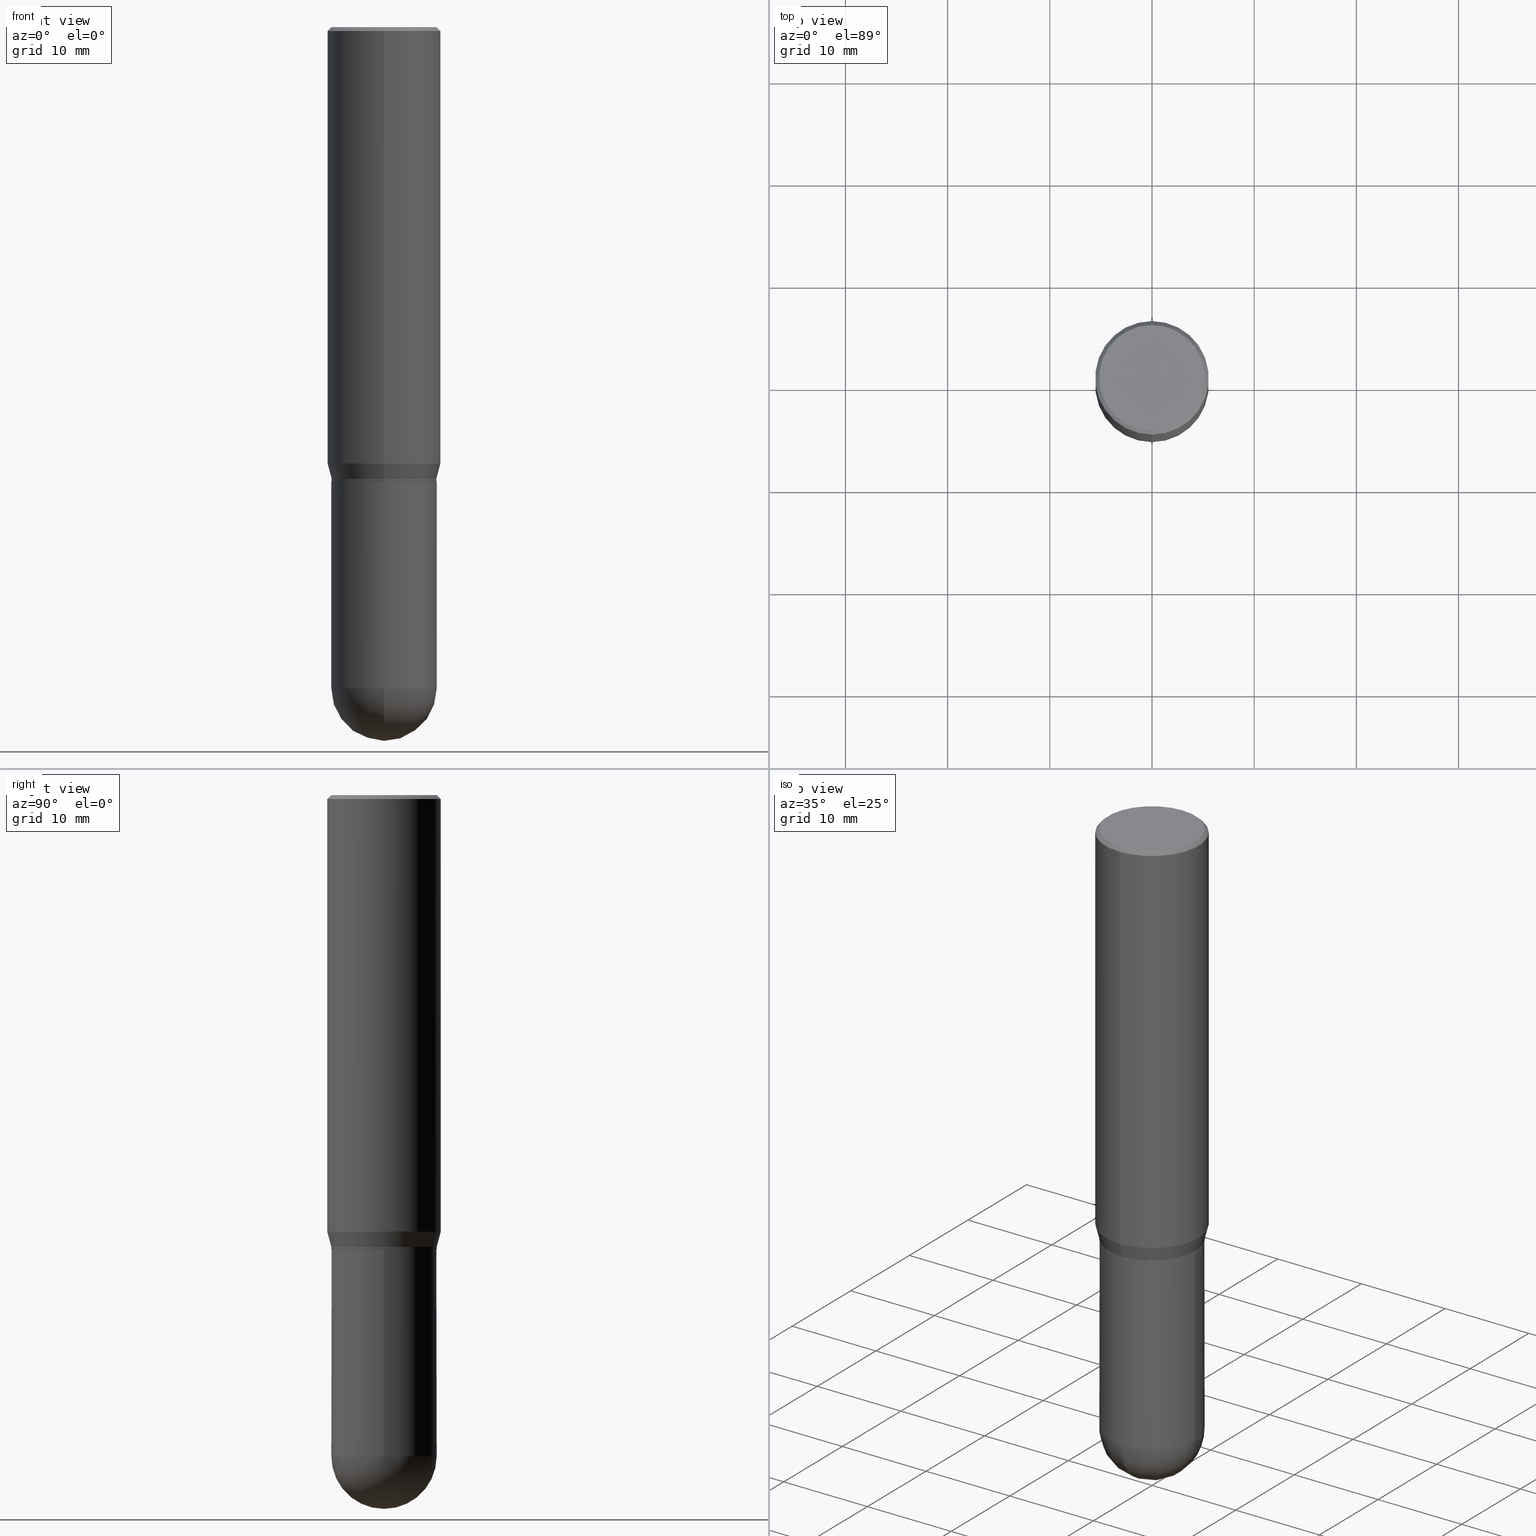
[diagram: canonical four-view strip — front | top / right | iso, engineering-drawing reading convention]
A machine part, canonical four-view strip (front | top / right | iso — engineering-drawing reading convention). The complete STEP part file that produces these views, byte-faithful:
ISO-10303-21;
HEADER;
FILE_DESCRIPTION (( 'STEP AP203' ),
    '1' );
FILE_NAME ('30352.STEP',
    '2024-03-08T15:22:58',
    ( '' ),
    ( '' ),
    'SwSTEP 2.0',
    'SolidWorks 2023',
    '' );
FILE_SCHEMA (( 'CONFIG_CONTROL_DESIGN' ));
ENDSEC;

DATA;
#1 = EDGE_LOOP ( 'NONE', ( #393, #192 ) ) ;
#2 = SHAPE_DEFINITION_REPRESENTATION ( #88, #202 ) ;
#3 = DIRECTION ( 'NONE',  ( -6.982962677686266711E-15, -1.000000000000000000, 4.035225987687243463E-15 ) ) ;
#4 = AXIS2_PLACEMENT_3D ( 'NONE', #228, #268, #75 ) ;
#5 = ORIENTED_EDGE ( 'NONE', *, *, #122, .F. ) ;
#6 = EDGE_CURVE ( 'NONE', #275, #503, #316, .T. ) ;
#7 = DIRECTION ( 'NONE',  ( -2.445218819430257669E-29, 3.491839334104495039E-15, 1.000000000000000000 ) ) ;
#8 = CARTESIAN_POINT ( 'NONE',  ( 0.2031000000000000028, -1.418239719838080775E-15, 9.903515031641546145E-30 ) ) ;
#9 = ORIENTED_EDGE ( 'NONE', *, *, #22, .F. ) ;
#10 = CARTESIAN_POINT ( 'NONE',  ( 6.210996075139691695E-29, -8.917326398390289827E-15, -2.546899999999999942 ) ) ;
#11 = ADVANCED_FACE ( 'NONE', ( #109 ), #198, .T. ) ;
#12 = CIRCLE ( 'NONE', #230, 0.2031000000000000583 ) ;
#13 = CIRCLE ( 'NONE', #452, 0.2187500000000000000 ) ;
#14 = COORDINATED_UNIVERSAL_TIME_OFFSET ( 5, 0, .BEHIND. ) ;
#15 = ORIENTED_EDGE ( 'NONE', *, *, #282, .T. ) ;
#16 = DIRECTION ( 'NONE',  ( -6.982962677686265922E-15, -1.000000000000000000, 4.045184590815789415E-15 ) ) ;
#17 = CALENDAR_DATE ( 2024, 8, 3 ) ;
#18 = SPHERICAL_SURFACE ( 'NONE', #27, 0.2030999999999999472 ) ;
#19 = CARTESIAN_POINT ( 'NONE',  ( -1.418239719838037782E-15, -0.2031000000000060257, -1.739999999999999103 ) ) ;
#20 = CIRCLE ( 'NONE', #124, 0.2031000000000000028 ) ;
#21 = APPROVAL_PERSON_ORGANIZATION ( #299, #173, #96 ) ;
#22 = EDGE_CURVE ( 'NONE', #166, #503, #421, .T. ) ;
#23 = ORIENTED_EDGE ( 'NONE', *, *, #407, .F. ) ;
#24 = DIRECTION ( 'NONE',  ( -6.982962677686265133E-15, -1.000000000000000000, 3.491839334104495039E-15 ) ) ;
#25 = DIRECTION ( 'NONE',  ( -4.937700262164715281E-15, -0.7071067811865691111, 0.7071067811865257013 ) ) ;
#26 = ADVANCED_FACE ( 'NONE', ( #69 ), #431, .T. ) ;
#27 = AXIS2_PLACEMENT_3D ( 'NONE', #490, #59, #142 ) ;
#28 = CARTESIAN_POINT ( 'NONE',  ( 3.667828229145395104E-31, -5.237759001156755081E-17, -0.01500000000000003587 ) ) ;
#29 = CC_DESIGN_APPROVAL ( #286, ( #478 ) ) ;
#30 = DIRECTION ( 'NONE',  ( 1.000000000000000000, -6.982962677686262766E-15, 0.000000000000000000 ) ) ;
#31 = ORIENTED_EDGE ( 'NONE', *, *, #471, .F. ) ;
#32 = PLANE ( 'NONE',  #262 ) ;
#33 = VERTEX_POINT ( 'NONE', #425 ) ;
#34 = CARTESIAN_POINT ( 'NONE',  ( 0.000000000000000000, 0.000000000000000000, 0.000000000000000000 ) ) ;
#35 = DIRECTION ( 'NONE',  ( -2.445468806185136597E-29, 3.491481338843145583E-15, 1.000000000000000000 ) ) ;
#36 = CARTESIAN_POINT ( 'NONE',  ( 6.228364502472924746E-29, -8.892453821899607499E-15, -2.546899999999999942 ) ) ;
#37 = EDGE_CURVE ( 'NONE', #396, #310, #232, .T. ) ;
#38 = ORIENTED_EDGE ( 'NONE', *, *, #401, .F. ) ;
#39 = CARTESIAN_POINT ( 'NONE',  ( 3.667828229145395104E-31, -5.237759001156755081E-17, -0.01500000000000003587 ) ) ;
#40 = VERTEX_POINT ( 'NONE', #315 ) ;
#41 = CARTESIAN_POINT ( 'NONE',  ( 1.498712265402032742E-15, 0.2030999999999938688, -1.740000000000000879 ) ) ;
#42 = CC_DESIGN_PERSON_AND_ORGANIZATION_ASSIGNMENT ( #219, #435, ( #478 ) ) ;
#43 = FACE_OUTER_BOUND ( 'NONE', #210, .T. ) ;
#44 = VECTOR ( 'NONE', #426, 39.37007874015748143 ) ;
#45 = EDGE_LOOP ( 'NONE', ( #359, #312, #117, #190 ) ) ;
#46 = DIRECTION ( 'NONE',  ( -2.445468806185136877E-29, 3.491481338843145188E-15, 1.000000000000000000 ) ) ;
#47 = VERTEX_POINT ( 'NONE', #476 ) ;
#48 = ORIENTED_EDGE ( 'NONE', *, *, #496, .T. ) ;
#49 = EDGE_CURVE ( 'NONE', #310, #40, #349, .T. ) ;
#50 = DIRECTION ( 'NONE',  ( -2.445468806185136597E-29, 3.491481338843145583E-15, 1.000000000000000000 ) ) ;
#51 = EDGE_LOOP ( 'NONE', ( #472, #385, #234, #434 ) ) ;
#52 = CARTESIAN_POINT ( 'NONE',  ( -0.2031000000000000028, 1.443112296328763497E-15, -9.990357168307714203E-30 ) ) ;
#53 = CIRCLE ( 'NONE', #231, 0.2030999999999999472 ) ;
#54 = CARTESIAN_POINT ( 'NONE',  ( -1.414748238499194972E-15, -0.2026000000000061363, -1.749999999999999112 ) ) ;
#55 = COORDINATED_UNIVERSAL_TIME_OFFSET ( 5, 0, .BEHIND. ) ;
#56 = CARTESIAN_POINT ( 'NONE',  ( -1.418239719838037782E-15, -0.2031000000000060257, -1.739999999999999103 ) ) ;
#57 = DATE_TIME_ROLE ( 'classification_date' ) ;
#58 = EDGE_CURVE ( 'NONE', #273, #340, #358, .T. ) ;
#59 = DIRECTION ( 'NONE',  ( -1.000000000000000000, 6.982962677686266711E-15, -4.883557194083112901E-29 ) ) ;
#60 = AXIS2_PLACEMENT_3D ( 'NONE', #391, #271, #238 ) ;
#61 = VECTOR ( 'NONE', #409, 39.37007874015748143 ) ;
#62 = CARTESIAN_POINT ( 'NONE',  ( 1.443112296328806293E-15, 0.2030999999999939243, -1.749500000000000721 ) ) ;
#63 = ORIENTED_EDGE ( 'NONE', *, *, #6, .F. ) ;
#64 = DIRECTION ( 'NONE',  ( -6.982962677686266711E-15, -1.000000000000000000, 4.035225987687243463E-15 ) ) ;
#65 = PERSON ( 'UNSPECIFIED', 'UNSPECIFIED', 'UNSPECIFIED', ('UNSPECIFIED'), ('UNSPECIFIED'), ('UNSPECIFIED') ) ;
#66 = EDGE_CURVE ( 'NONE', #264, #396, #477, .T. ) ;
#67 = AXIS2_PLACEMENT_3D ( 'NONE', #211, #135, #16 ) ;
#68 = CIRCLE ( 'NONE', #254, 0.2026000000000000023 ) ;
#69 = FACE_OUTER_BOUND ( 'NONE', #247, .T. ) ;
#70 = ORIENTED_EDGE ( 'NONE', *, *, #274, .T. ) ;
#71 = ORIENTED_EDGE ( 'NONE', *, *, #371, .F. ) ;
#72 = DIRECTION ( 'NONE',  ( -2.445218819430257669E-29, 3.491839334104495039E-15, 1.000000000000000000 ) ) ;
#73 = AXIS2_PLACEMENT_3D ( 'NONE', #369, #80, #3 ) ;
#74 = CC_DESIGN_APPROVAL ( #79, ( #354 ) ) ;
#75 = DIRECTION ( 'NONE',  ( -6.982962677686265133E-15, -1.000000000000000000, 3.491839334104495039E-15 ) ) ;
#76 = MANIFOLD_SOLID_BREP ( 'Body-Move/Copy2[2]', #288 ) ;
#77 = EDGE_LOOP ( 'NONE', ( #70, #170 ) ) ;
#78 = CALENDAR_DATE ( 2024, 8, 3 ) ;
#79 = APPROVAL ( #200, 'UNSPECIFIED' ) ;
#80 = DIRECTION ( 'NONE',  ( -2.445218819430257669E-29, 3.491839334104495039E-15, 1.000000000000000000 ) ) ;
#81 = CARTESIAN_POINT ( 'NONE',  ( 1.527523085743871040E-15, 0.2187499999999999167, -0.01500000000000080089 ) ) ;
#82 = VERTEX_POINT ( 'NONE', #307 ) ;
#83 = FACE_OUTER_BOUND ( 'NONE', #475, .T. ) ;
#84 = CIRCLE ( 'NONE', #373, 0.2030999999999999472 ) ;
#85 = MANIFOLD_SOLID_BREP ( 'Body-Move/Copy2[1]', #441 ) ;
#86 = ORIENTED_EDGE ( 'NONE', *, *, #458, .T. ) ;
#87 = CARTESIAN_POINT ( 'NONE',  ( 6.210996075139691695E-29, -8.917326398390289827E-15, -2.546899999999999942 ) ) ;
#88 = PRODUCT_DEFINITION_SHAPE ( 'NONE', 'NONE',  #354 ) ;
#89 = EDGE_CURVE ( 'NONE', #47, #118, #176, .T. ) ;
#90 = CARTESIAN_POINT ( 'NONE',  ( 1.475150865661223764E-15, 0.2037499999999999867, -7.474527806162975225E-16 ) ) ;
#91 = SECURITY_CLASSIFICATION_LEVEL ( 'unclassified' ) ;
#92 = CARTESIAN_POINT ( 'NONE',  ( 1.418239719838142898E-15, 0.2030999999999910932, -2.546900000000000830 ) ) ;
#93 = DIMENSIONAL_EXPONENTS ( 1.000000000000000000, 0.000000000000000000, 0.000000000000000000, 0.000000000000000000, 0.000000000000000000, 0.000000000000000000, 0.000000000000000000 ) ;
#94 = CIRCLE ( 'NONE', #261, 0.2037499999999999867 ) ;
#95 = VECTOR ( 'NONE', #469, 39.37007874015748143 ) ;
#96 = APPROVAL_ROLE ( '' ) ;
#97 = CYLINDRICAL_SURFACE ( 'NONE', #492, 0.2031000000000000028 ) ;
#98 = EDGE_CURVE ( 'NONE', #273, #118, #398, .T. ) ;
#99 = PERSON_AND_ORGANIZATION ( #65, #499 ) ;
#100 = DIRECTION ( 'NONE',  ( -2.445218819430257669E-29, 3.491839334104495039E-15, 1.000000000000000000 ) ) ;
#101 = CARTESIAN_POINT ( 'NONE',  ( 0.000000000000000000, 0.000000000000000000, 0.000000000000000000 ) ) ;
#102 = VECTOR ( 'NONE', #186, 39.37007874015748143 ) ;
#103 = ADVANCED_FACE ( 'NONE', ( #209 ), #293, .T. ) ;
#104 = FACE_OUTER_BOUND ( 'NONE', #501, .T. ) ;
#105 = EDGE_LOOP ( 'NONE', ( #38, #446, #196, #427 ) ) ;
#106 = PRODUCT_RELATED_PRODUCT_CATEGORY ( 'detail', '', ( #356 ) ) ;
#107 =( CONVERSION_BASED_UNIT ( 'INCH', #473 ) LENGTH_UNIT ( ) NAMED_UNIT ( #93 ) );
#108 = DESIGN_CONTEXT ( 'detailed design', #346, 'design' ) ;
#109 = FACE_OUTER_BOUND ( 'NONE', #45, .T. ) ;
#110 = AXIS2_PLACEMENT_3D ( 'NONE', #361, #7, #246 ) ;
#111 = ORIENTED_EDGE ( 'NONE', *, *, #132, .F. ) ;
#112 = AXIS2_PLACEMENT_3D ( 'NONE', #505, #281, #436 ) ;
#113 = CARTESIAN_POINT ( 'NONE',  ( 3.667828229145395104E-31, -5.237759001156755081E-17, -0.01500000000000003587 ) ) ;
#114 = ORIENTED_EDGE ( 'NONE', *, *, #449, .T. ) ;
#115 = EDGE_CURVE ( 'NONE', #387, #166, #244, .T. ) ;
#116 = DIRECTION ( 'NONE',  ( -2.445218819430257669E-29, 3.491839334104495039E-15, 1.000000000000000000 ) ) ;
#117 = ORIENTED_EDGE ( 'NONE', *, *, #423, .F. ) ;
#118 = VERTEX_POINT ( 'NONE', #248 ) ;
#119 = CARTESIAN_POINT ( 'NONE',  ( -1.418239719838080381E-15, -0.2030999999999999472, 7.091925687566227078E-16 ) ) ;
#120 = CARTESIAN_POINT ( 'NONE',  ( 1.554312234475218762E-15, 0.2187500000000000000, -7.638398543353582897E-16 ) ) ;
#121 = ORIENTED_EDGE ( 'NONE', *, *, #122, .T. ) ;
#122 = EDGE_CURVE ( 'NONE', #118, #47, #20, .T. ) ;
#123 = APPROVAL_ROLE ( '' ) ;
#124 = AXIS2_PLACEMENT_3D ( 'NONE', #161, #50, #251 ) ;
#125 = ORIENTED_EDGE ( 'NONE', *, *, #383, .F. ) ;
#126 = CARTESIAN_POINT ( 'NONE',  ( 4.279570410823988484E-29, -6.110092342975504671E-15, -1.750000000000000000 ) ) ;
#127 = ORIENTED_EDGE ( 'NONE', *, *, #49, .F. ) ;
#128 = LINE ( 'NONE', #8, #236 ) ;
#129 = DIRECTION ( 'NONE',  ( 6.982962677686266711E-15, 1.000000000000000000, -2.690150658458162309E-15 ) ) ;
#130 = CIRCLE ( 'NONE', #73, 0.2030999999999999472 ) ;
#131 = AXIS2_PLACEMENT_3D ( 'NONE', #183, #100, #498 ) ;
#132 = EDGE_CURVE ( 'NONE', #199, #340, #84, .T. ) ;
#133 = PERSON_AND_ORGANIZATION ( #65, #499 ) ;
#134 = DIRECTION ( 'NONE',  ( 1.000000000000000000, -6.982962677686262766E-15, 0.000000000000000000 ) ) ;
#135 = DIRECTION ( 'NONE',  ( -2.445218819430257669E-29, 3.491839334104495039E-15, 1.000000000000000000 ) ) ;
#136 = DATE_TIME_ROLE ( 'creation_date' ) ;
#137 = CC_DESIGN_PERSON_AND_ORGANIZATION_ASSIGNMENT ( #133, #239, ( #177 ) ) ;
#138 = LINE ( 'NONE', #296, #61 ) ;
#139 = VECTOR ( 'NONE', #148, 39.37007874015748143 ) ;
#140 = APPROVAL_DATE_TIME ( #169, #79 ) ;
#141 = FACE_OUTER_BOUND ( 'NONE', #207, .T. ) ;
#142 = DIRECTION ( 'NONE',  ( 6.982962677686266711E-15, 1.000000000000000000, -2.690150658458162309E-15 ) ) ;
#143 = UNCERTAINTY_MEASURE_WITH_UNIT (LENGTH_MEASURE( 1.000000000000000082E-05 ), #107, 'distance_accuracy_value', 'NONE');
#144 = ADVANCED_FACE ( 'NONE', ( #83 ), #223, .T. ) ;
#145 = FACE_OUTER_BOUND ( 'NONE', #77, .T. ) ;
#146 = AXIS2_PLACEMENT_3D ( 'NONE', #167, #485, #392 ) ;
#147 = VECTOR ( 'NONE', #25, 39.37007874015748854 ) ;
#148 = DIRECTION ( 'NONE',  ( 1.839019923739593216E-15, 0.2588190451025239591, 0.9659258262890674240 ) ) ;
#149 = ORIENTED_EDGE ( 'NONE', *, *, #164, .T. ) ;
#150 = DIRECTION ( 'NONE',  ( 2.445218819430257669E-29, -3.491839334104495039E-15, -1.000000000000000000 ) ) ;
#151 = EDGE_CURVE ( 'NONE', #340, #82, #508, .T. ) ;
#152 = DIRECTION ( 'NONE',  ( -6.982962677686265922E-15, -1.000000000000000000, 4.045184590815789415E-15 ) ) ;
#153 = LOCAL_TIME ( 10, 22, 58.00000000000000000, #366 ) ;
#154 = DIRECTION ( 'NONE',  ( 1.000000000000000000, 0.000000000000000000, 0.000000000000000000 ) ) ;
#155 = EDGE_LOOP ( 'NONE', ( #287, #511, #179, #31 ) ) ;
#156 = LINE ( 'NONE', #463, #44 ) ;
#157 = ORIENTED_EDGE ( 'NONE', *, *, #187, .F. ) ;
#158 = EDGE_CURVE ( 'NONE', #182, #503, #283, .T. ) ;
#159 = VERTEX_POINT ( 'NONE', #41 ) ;
#160 = CIRCLE ( 'NONE', #131, 0.2187500000000000000 ) ;
#161 = CARTESIAN_POINT ( 'NONE',  ( 4.279570410823988484E-29, -6.110092342975504671E-15, -1.750000000000000000 ) ) ;
#162 = ORIENTED_EDGE ( 'NONE', *, *, #250, .T. ) ;
#163 = FACE_OUTER_BOUND ( 'NONE', #51, .T. ) ;
#164 = EDGE_CURVE ( 'NONE', #82, #47, #128, .T. ) ;
#165 = DIRECTION ( 'NONE',  ( -7.105427357601001070E-15, -1.000000000000000000, 0.000000000000000000 ) ) ;
#166 = VERTEX_POINT ( 'NONE', #447 ) ;
#167 = CARTESIAN_POINT ( 'NONE',  ( 0.000000000000000000, 0.000000000000000000, 0.000000000000000000 ) ) ;
#168 = AXIS2_PLACEMENT_3D ( 'NONE', #34, #507, #154 ) ;
#169 = DATE_AND_TIME ( #217, #153 ) ;
#170 = ORIENTED_EDGE ( 'NONE', *, *, #195, .T. ) ;
#171 = DIRECTION ( 'NONE',  ( 1.000000000000000000, -6.982962677686269866E-15, 0.000000000000000000 ) ) ;
#172 = APPROVAL_STATUS ( 'not_yet_approved' ) ;
#173 = APPROVAL ( #172, 'UNSPECIFIED' ) ;
#174 = DIRECTION ( 'NONE',  ( -2.445218819430257669E-29, 3.491839334104495039E-15, 1.000000000000000000 ) ) ;
#175 = CARTESIAN_POINT ( 'NONE',  ( -1.500733937012521740E-15, -0.2187500000000000555, -0.01499999999999927260 ) ) ;
#176 = CIRCLE ( 'NONE', #331, 0.2031000000000000028 ) ;
#177 = PRODUCT_DEFINITION_FORMATION_WITH_SPECIFIED_SOURCE ( 'ANY', '', #356, .NOT_KNOWN. ) ;
#178 = DIRECTION ( 'NONE',  ( 1.000000000000000000, -6.982962677686266711E-15, 4.876176775795935793E-29 ) ) ;
#179 = ORIENTED_EDGE ( 'NONE', *, *, #487, .T. ) ;
#180 = CARTESIAN_POINT ( 'NONE',  ( -1.414748238499194972E-15, -0.2026000000000061363, -1.749999999999999112 ) ) ;
#181 = EDGE_CURVE ( 'NONE', #40, #310, #130, .T. ) ;
#182 = VERTEX_POINT ( 'NONE', #90 ) ;
#183 = CARTESIAN_POINT ( 'NONE',  ( 4.111863840197258972E-29, -5.871853995066253491E-15, -1.681593404861546848 ) ) ;
#184 = APPROVAL_PERSON_ORGANIZATION ( #295, #79, #123 ) ;
#185 = DIRECTION ( 'NONE',  ( -6.982962677686265922E-15, -1.000000000000000000, 4.045184590815789415E-15 ) ) ;
#186 = DIRECTION ( 'NONE',  ( -2.445218819430257949E-29, 3.491839334104495039E-15, 1.000000000000000000 ) ) ;
#187 = EDGE_CURVE ( 'NONE', #279, #273, #12, .T. ) ;
#188 = ORIENTED_EDGE ( 'NONE', *, *, #58, .F. ) ;
#189 = DIRECTION ( 'NONE',  ( -1.000000000000000000, 6.982962677686265922E-15, -4.876176775795935793E-29 ) ) ;
#190 = ORIENTED_EDGE ( 'NONE', *, *, #487, .F. ) ;
#191 = CARTESIAN_POINT ( 'NONE',  ( 4.279132934002950220E-29, -6.110718834682865529E-15, -1.750000000000000000 ) ) ;
#192 = ORIENTED_EDGE ( 'NONE', *, *, #458, .F. ) ;
#193 = VECTOR ( 'NONE', #272, 39.37007874015748143 ) ;
#194 = CARTESIAN_POINT ( 'NONE',  ( 1.554312234475260375E-15, 0.2187499999999999167, -0.01500000000000080089 ) ) ;
#195 = EDGE_CURVE ( 'NONE', #33, #182, #412, .T. ) ;
#196 = ORIENTED_EDGE ( 'NONE', *, *, #158, .T. ) ;
#197 = DIRECTION ( 'NONE',  ( 2.445218819430257669E-29, -3.491839334104495039E-15, -1.000000000000000000 ) ) ;
#198 = CYLINDRICAL_SURFACE ( 'NONE', #278, 0.2030999999999999472 ) ;
#199 = VERTEX_POINT ( 'NONE', #319 ) ;
#200 = APPROVAL_STATUS ( 'not_yet_approved' ) ;
#201 = CARTESIAN_POINT ( 'NONE',  ( 4.111863840197258972E-29, -5.871853995066253491E-15, -1.681593404861546848 ) ) ;
#202 = ADVANCED_BREP_SHAPE_REPRESENTATION ( '30352', ( #85, #76, #168 ), #397 ) ;
#203 = ORIENTED_EDGE ( 'NONE', *, *, #164, .F. ) ;
#204 = AXIS2_PLACEMENT_3D ( 'NONE', #327, #240, #285 ) ;
#205 = CONICAL_SURFACE ( 'NONE', #269, 0.2187500000000000000, 0.7853981633974485010 ) ;
#206 = CYLINDRICAL_SURFACE ( 'NONE', #110, 0.2187500000000000000 ) ;
#207 = EDGE_LOOP ( 'NONE', ( #351, #438, #314, #71 ) ) ;
#208 = ADVANCED_FACE ( 'NONE', ( #323 ), #480, .T. ) ;
#209 = FACE_OUTER_BOUND ( 'NONE', #155, .T. ) ;
#210 = EDGE_LOOP ( 'NONE', ( #9, #343, #48, #23 ) ) ;
#211 = CARTESIAN_POINT ( 'NONE',  ( 4.279132934002950220E-29, -6.110718834682865529E-15, -1.750000000000000000 ) ) ;
#212 = ORIENTED_EDGE ( 'NONE', *, *, #250, .F. ) ;
#213 = DIRECTION ( 'NONE',  ( -6.982962677686265133E-15, -1.000000000000000000, 3.746534391310989557E-15 ) ) ;
#214 = VECTOR ( 'NONE', #46, 39.37007874015748143 ) ;
#215 = AXIS2_PLACEMENT_3D ( 'NONE', #222, #450, #258 ) ;
#216 = ADVANCED_FACE ( 'NONE', ( #43 ), #206, .T. ) ;
#217 = CALENDAR_DATE ( 2024, 8, 3 ) ;
#218 = FACE_OUTER_BOUND ( 'NONE', #443, .T. ) ;
#219 = PERSON_AND_ORGANIZATION ( #65, #499 ) ;
#220 = DIRECTION ( 'NONE',  ( 6.982962677686265922E-15, 1.000000000000000000, -3.491839334104495039E-15 ) ) ;
#221 = DATE_AND_TIME ( #249, #224 ) ;
#222 = CARTESIAN_POINT ( 'NONE',  ( 4.279132934002950220E-29, -6.110718834682865529E-15, -1.750000000000000000 ) ) ;
#223 = CONICAL_SURFACE ( 'NONE', #67, 0.2026000000000000023, 0.7853981633974824739 ) ;
#224 = LOCAL_TIME ( 10, 22, 58.00000000000000000, #55 ) ;
#225 = PLANE ( 'NONE',  #422 ) ;
#226 = CARTESIAN_POINT ( 'NONE',  ( -1.443112296328700980E-15, -0.2031000000000088845, -2.546899999999999498 ) ) ;
#227 = DIRECTION ( 'NONE',  ( 1.000000000000000000, -6.982962677686262766E-15, 0.000000000000000000 ) ) ;
#228 = CARTESIAN_POINT ( 'NONE',  ( 0.000000000000000000, 0.000000000000000000, 0.000000000000000000 ) ) ;
#229 = ADVANCED_FACE ( 'NONE', ( #163 ), #324, .T. ) ;
#230 = AXIS2_PLACEMENT_3D ( 'NONE', #394, #365, #404 ) ;
#231 = AXIS2_PLACEMENT_3D ( 'NONE', #313, #72, #378 ) ;
#232 = LINE ( 'NONE', #345, #459 ) ;
#233 = APPLICATION_PROTOCOL_DEFINITION ( 'international standard', 'config_control_design', 1994, #364 ) ;
#234 = ORIENTED_EDGE ( 'NONE', *, *, #115, .F. ) ;
#235 = DIRECTION ( 'NONE',  ( -2.445218819430257669E-29, 3.491839334104495039E-15, 1.000000000000000000 ) ) ;
#236 = VECTOR ( 'NONE', #326, 39.37007874015748143 ) ;
#237 = DIRECTION ( 'NONE',  ( -6.982962677686265133E-15, -1.000000000000000000, 3.492862791899308071E-15 ) ) ;
#238 = DIRECTION ( 'NONE',  ( -6.982962677686265133E-15, -1.000000000000000000, 3.492862791899308071E-15 ) ) ;
#239 = PERSON_AND_ORGANIZATION_ROLE ( 'design_supplier' ) ;
#240 = DIRECTION ( 'NONE',  ( -2.445218819430257669E-29, 3.491839334104495039E-15, 1.000000000000000000 ) ) ;
#241 = DIRECTION ( 'NONE',  ( -1.000000000000000000, 6.982962677686266711E-15, -4.883557194083112901E-29 ) ) ;
#242 = CC_DESIGN_PERSON_AND_ORGANIZATION_ASSIGNMENT ( #386, #445, ( #356 ) ) ;
#243 = ORIENTED_EDGE ( 'NONE', *, *, #37, .F. ) ;
#244 = CIRCLE ( 'NONE', #388, 0.2187500000000000000 ) ;
#245 = CONICAL_SURFACE ( 'NONE', #289, 0.2030999999999999472, 0.2617993877991492413 ) ;
#246 = DIRECTION ( 'NONE',  ( -6.982962677686265133E-15, -1.000000000000000000, 3.491839334104495039E-15 ) ) ;
#247 = EDGE_LOOP ( 'NONE', ( #322, #415, #63, #320 ) ) ;
#248 = CARTESIAN_POINT ( 'NONE',  ( -0.2031000000000000028, -6.058160786108792588E-15, -1.750000000000000000 ) ) ;
#249 = CALENDAR_DATE ( 2024, 8, 3 ) ;
#250 = EDGE_CURVE ( 'NONE', #199, #279, #253, .T. ) ;
#251 = DIRECTION ( 'NONE',  ( 1.000000000000000000, -6.982962677686269866E-15, 0.000000000000000000 ) ) ;
#252 = CARTESIAN_POINT ( 'NONE',  ( -1.527523085743829428E-15, -0.2187500000000058287, -1.681593404861545960 ) ) ;
#253 = CIRCLE ( 'NONE', #484, 0.2030999999999999472 ) ;
#254 = AXIS2_PLACEMENT_3D ( 'NONE', #191, #389, #185 ) ;
#255 = APPLICATION_PROTOCOL_DEFINITION ( 'international standard', 'config_control_design', 1994, #346 ) ;
#256 = DIRECTION ( 'NONE',  ( 6.982962677686266711E-15, 1.000000000000000000, 0.000000000000000000 ) ) ;
#257 = DATE_AND_TIME ( #78, #375 ) ;
#258 = DIRECTION ( 'NONE',  ( -6.982962677686265922E-15, -1.000000000000000000, 4.045184590815789415E-15 ) ) ;
#259 = ADVANCED_FACE ( 'NONE', ( #104 ), #18, .T. ) ;
#260 = DIRECTION ( 'NONE',  ( -2.445218819430257109E-29, 3.491839334104495039E-15, 1.000000000000000000 ) ) ;
#261 = AXIS2_PLACEMENT_3D ( 'NONE', #370, #174, #24 ) ;
#262 = AXIS2_PLACEMENT_3D ( 'NONE', #384, #344, #189 ) ;
#263 = DIRECTION ( 'NONE',  ( 1.000000000000000000, -6.982962677686266711E-15, 4.876176775795935793E-29 ) ) ;
#264 = VERTEX_POINT ( 'NONE', #180 ) ;
#265 =( NAMED_UNIT ( * ) PLANE_ANGLE_UNIT ( ) SI_UNIT ( $, .RADIAN. ) );
#266 = CC_DESIGN_DATE_AND_TIME_ASSIGNMENT ( #479, #136, ( #354 ) ) ;
#267 = EDGE_LOOP ( 'NONE', ( #468, #465, #419, #203, #114 ) ) ;
#268 = DIRECTION ( 'NONE',  ( -2.445218819430257669E-29, 3.491839334104495039E-15, 1.000000000000000000 ) ) ;
#269 = AXIS2_PLACEMENT_3D ( 'NONE', #39, #197, #352 ) ;
#270 = DIRECTION ( 'NONE',  ( -2.445468806185136597E-29, 3.491481338843145583E-15, 1.000000000000000000 ) ) ;
#271 = DIRECTION ( 'NONE',  ( -2.445218819430257669E-29, 3.491839334104495039E-15, 1.000000000000000000 ) ) ;
#272 = DIRECTION ( 'NONE',  ( -2.445218819430257949E-29, 3.491839334104495039E-15, 1.000000000000000000 ) ) ;
#273 = VERTEX_POINT ( 'NONE', #494 ) ;
#274 = EDGE_CURVE ( 'NONE', #182, #33, #94, .T. ) ;
#275 = VERTEX_POINT ( 'NONE', #406 ) ;
#276 = FACE_OUTER_BOUND ( 'NONE', #105, .T. ) ;
#277 = ORIENTED_EDGE ( 'NONE', *, *, #151, .F. ) ;
#278 = AXIS2_PLACEMENT_3D ( 'NONE', #474, #235, #348 ) ;
#279 = VERTEX_POINT ( 'NONE', #92 ) ;
#280 = PERSON_AND_ORGANIZATION ( #65, #499 ) ;
#281 = DIRECTION ( 'NONE',  ( -2.445218819430257669E-29, 3.491839334104495039E-15, 1.000000000000000000 ) ) ;
#282 = EDGE_CURVE ( 'NONE', #400, #387, #377, .T. ) ;
#283 = LINE ( 'NONE', #81, #405 ) ;
#284 = ORIENTED_EDGE ( 'NONE', *, *, #401, .T. ) ;
#285 = DIRECTION ( 'NONE',  ( -6.982962677686265133E-15, -1.000000000000000000, 3.491839334104495039E-15 ) ) ;
#286 = APPROVAL ( #454, 'UNSPECIFIED' ) ;
#287 = ORIENTED_EDGE ( 'NONE', *, *, #390, .F. ) ;
#288 = CLOSED_SHELL ( 'NONE', ( #11, #317, #464, #26, #229, #336, #216, #429, #330, #304, #144, #103 ) ) ;
#289 = AXIS2_PLACEMENT_3D ( 'NONE', #303, #460, #64 ) ;
#290 = CARTESIAN_POINT ( 'NONE',  ( 4.254680745808648669E-29, -6.075800441341822188E-15, -1.739999999999999991 ) ) ;
#291 = PERSON_AND_ORGANIZATION_ROLE ( 'creator' ) ;
#292 = ADVANCED_FACE ( 'NONE', ( #337 ), #97, .T. ) ;
#293 = CYLINDRICAL_SURFACE ( 'NONE', #146, 0.2030999999999999472 ) ;
#294 = DIRECTION ( 'NONE',  ( -2.445468806185136597E-29, 3.491481338843145583E-15, 1.000000000000000000 ) ) ;
#295 = PERSON_AND_ORGANIZATION ( #65, #499 ) ;
#296 = CARTESIAN_POINT ( 'NONE',  ( 1.443112296328762905E-15, 0.2030999999999999472, -7.091925687566227078E-16 ) ) ;
#297 = AXIS2_PLACEMENT_3D ( 'NONE', #290, #444, #482 ) ;
#298 = CONICAL_SURFACE ( 'NONE', #414, 0.2187500000000000000, 0.7853981633974485010 ) ;
#299 = PERSON_AND_ORGANIZATION ( #65, #499 ) ;
#300 = FACE_OUTER_BOUND ( 'NONE', #306, .T. ) ;
#301 = ADVANCED_FACE ( 'NONE', ( #218 ), #334, .T. ) ;
#302 = DIRECTION ( 'NONE',  ( -1.807323732225323040E-15, -0.2588190451025171868, 0.9659258262890693114 ) ) ;
#303 = CARTESIAN_POINT ( 'NONE',  ( 4.254680745808648669E-29, -6.075800441341822188E-15, -1.739999999999999991 ) ) ;
#304 = ADVANCED_FACE ( 'NONE', ( #376 ), #411, .F. ) ;
#305 = LINE ( 'NONE', #119, #193 ) ;
#306 = EDGE_LOOP ( 'NONE', ( #504, #355, #15, #125 ) ) ;
#307 = CARTESIAN_POINT ( 'NONE',  ( 0.2031000000000000583, -8.919512802275635677E-15, -2.546899999999999942 ) ) ;
#308 = LOCAL_TIME ( 10, 22, 58.00000000000000000, #14 ) ;
#309 = MECHANICAL_CONTEXT ( 'NONE', #364, 'mechanical' ) ;
#310 = VERTEX_POINT ( 'NONE', #62 ) ;
#311 = EDGE_CURVE ( 'NONE', #159, #166, #497, .T. ) ;
#312 = ORIENTED_EDGE ( 'NONE', *, *, #390, .T. ) ;
#313 = CARTESIAN_POINT ( 'NONE',  ( 4.254680745808648669E-29, -6.075800441341822188E-15, -1.739999999999999991 ) ) ;
#314 = ORIENTED_EDGE ( 'NONE', *, *, #181, .F. ) ;
#315 = CARTESIAN_POINT ( 'NONE',  ( -1.418239719838036796E-15, -0.2031000000000059424, -1.749499999999999167 ) ) ;
#316 = CIRCLE ( 'NONE', #60, 0.2187500000000000000 ) ;
#317 = ADVANCED_FACE ( 'NONE', ( #141 ), #381, .T. ) ;
#318 = CALENDAR_DATE ( 2024, 8, 3 ) ;
#319 = CARTESIAN_POINT ( 'NONE',  ( 6.716355003342508555E-29, -9.614009970063991023E-15, -2.750000000000000000 ) ) ;
#320 = ORIENTED_EDGE ( 'NONE', *, *, #496, .F. ) ;
#321 = DIRECTION ( 'NONE',  ( -1.000000000000000000, 7.105427357601001070E-15, -4.926315508542082329E-29 ) ) ;
#322 = ORIENTED_EDGE ( 'NONE', *, *, #115, .T. ) ;
#323 = FACE_OUTER_BOUND ( 'NONE', #510, .T. ) ;
#324 = CONICAL_SURFACE ( 'NONE', #297, 0.2030999999999999472, 0.2617993877991492413 ) ;
#325 = CIRCLE ( 'NONE', #360, 0.2031000000000000583 ) ;
#326 = DIRECTION ( 'NONE',  ( -2.445468806185136877E-29, 3.491481338843145188E-15, 1.000000000000000000 ) ) ;
#327 = CARTESIAN_POINT ( 'NONE',  ( 8.800468775944873433E-46, -1.256731004449036415E-31, -3.599051629250672199E-17 ) ) ;
#328 = APPROVAL_DATE_TIME ( #448, #173 ) ;
#329 = CARTESIAN_POINT ( 'NONE',  ( 1.443112296328805307E-15, 0.2030999999999938688, -1.740000000000000879 ) ) ;
#330 = ADVANCED_FACE ( 'NONE', ( #145 ), #225, .F. ) ;
#331 = AXIS2_PLACEMENT_3D ( 'NONE', #126, #488, #171 ) ;
#332 = DIRECTION ( 'NONE',  ( -2.445468806185136597E-29, 3.491481338843145583E-15, 1.000000000000000000 ) ) ;
#333 = AXIS2_PLACEMENT_3D ( 'NONE', #416, #260, #413 ) ;
#334 = CYLINDRICAL_SURFACE ( 'NONE', #339, 0.2031000000000000028 ) ;
#335 = DIRECTION ( 'NONE',  ( 2.445218819430257109E-29, -3.491839334104495039E-15, -1.000000000000000000 ) ) ;
#336 = ADVANCED_FACE ( 'NONE', ( #300 ), #245, .T. ) ;
#337 = FACE_OUTER_BOUND ( 'NONE', #267, .T. ) ;
#338 = AXIS2_PLACEMENT_3D ( 'NONE', #342, #382, #152 ) ;
#339 = AXIS2_PLACEMENT_3D ( 'NONE', #495, #457, #263 ) ;
#340 = VERTEX_POINT ( 'NONE', #226 ) ;
#341 = FACE_OUTER_BOUND ( 'NONE', #399, .T. ) ;
#342 = CARTESIAN_POINT ( 'NONE',  ( 4.279132934002950220E-29, -6.110718834682865529E-15, -1.750000000000000000 ) ) ;
#343 = ORIENTED_EDGE ( 'NONE', *, *, #383, .T. ) ;
#344 = DIRECTION ( 'NONE',  ( 2.438088387897960049E-29, -3.491481338843145188E-15, -1.000000000000000000 ) ) ;
#345 = CARTESIAN_POINT ( 'NONE',  ( 1.439559582650005591E-15, 0.2025999999999938961, -1.750000000000000666 ) ) ;
#346 = APPLICATION_CONTEXT ( 'configuration controlled 3d designs of mechanical parts and assemblies' ) ;
#347 = ORIENTED_EDGE ( 'NONE', *, *, #158, .F. ) ;
#348 = DIRECTION ( 'NONE',  ( -6.982962677686266711E-15, -1.000000000000000000, 3.491839334104494644E-15 ) ) ;
#349 = CIRCLE ( 'NONE', #112, 0.2030999999999999472 ) ;
#350 = FACE_OUTER_BOUND ( 'NONE', #461, .T. ) ;
#351 = ORIENTED_EDGE ( 'NONE', *, *, #66, .T. ) ;
#352 = DIRECTION ( 'NONE',  ( 6.982962677686265133E-15, 1.000000000000000000, -3.492862791899308071E-15 ) ) ;
#353 = DIRECTION ( 'NONE',  ( 5.024295867788231995E-15, 0.7071067811865739960, 0.7071067811865208164 ) ) ;
#354 = PRODUCT_DEFINITION ( 'UNKNOWN', '', #177, #108 ) ;
#355 = ORIENTED_EDGE ( 'NONE', *, *, #471, .T. ) ;
#356 = PRODUCT ( '30352', '30352', '', ( #309 ) ) ;
#357 = DIRECTION ( 'NONE',  ( 4.937700262164548831E-15, 0.7071067811865452413, -0.7071067811865497932 ) ) ;
#358 = CIRCLE ( 'NONE', #368, 0.2031000000000000583 ) ;
#359 = ORIENTED_EDGE ( 'NONE', *, *, #181, .T. ) ;
#360 = AXIS2_PLACEMENT_3D ( 'NONE', #36, #270, #227 ) ;
#361 = CARTESIAN_POINT ( 'NONE',  ( 0.000000000000000000, 0.000000000000000000, 0.000000000000000000 ) ) ;
#362 = DIRECTION ( 'NONE',  ( -2.445218819430257669E-29, 3.491839334104495039E-15, 1.000000000000000000 ) ) ;
#363 = ORIENTED_EDGE ( 'NONE', *, *, #58, .T. ) ;
#364 = APPLICATION_CONTEXT ( 'configuration controlled 3d designs of mechanical parts and assemblies' ) ;
#365 = DIRECTION ( 'NONE',  ( -2.445468806185136597E-29, 3.491481338843145583E-15, 1.000000000000000000 ) ) ;
#366 = COORDINATED_UNIVERSAL_TIME_OFFSET ( 5, 0, .BEHIND. ) ;
#367 = ORIENTED_EDGE ( 'NONE', *, *, #89, .T. ) ;
#368 = AXIS2_PLACEMENT_3D ( 'NONE', #380, #35, #30 ) ;
#369 = CARTESIAN_POINT ( 'NONE',  ( 4.277910324593235451E-29, -6.108972915015813323E-15, -1.749500000000000055 ) ) ;
#370 = CARTESIAN_POINT ( 'NONE',  ( 8.800468775944873433E-46, -1.256731004449036415E-31, -3.599051629250672199E-17 ) ) ;
#371 = EDGE_CURVE ( 'NONE', #264, #40, #455, .T. ) ;
#372 = LINE ( 'NONE', #175, #95 ) ;
#373 = AXIS2_PLACEMENT_3D ( 'NONE', #10, #321, #165 ) ;
#374 = CARTESIAN_POINT ( 'NONE',  ( 1.422778645578576487E-15, 0.2037499999999999867, -7.294575224700439705E-16 ) ) ;
#375 = LOCAL_TIME ( 10, 22, 58.00000000000000000, #489 ) ;
#376 = FACE_OUTER_BOUND ( 'NONE', #1, .T. ) ;
#377 = LINE ( 'NONE', #19, #379 ) ;
#378 = DIRECTION ( 'NONE',  ( -6.982962677686266711E-15, -1.000000000000000000, 4.035225987687243463E-15 ) ) ;
#379 = VECTOR ( 'NONE', #302, 39.37007874015748854 ) ;
#380 = CARTESIAN_POINT ( 'NONE',  ( 6.228364502472924746E-29, -8.892453821899607499E-15, -2.546899999999999942 ) ) ;
#381 = CONICAL_SURFACE ( 'NONE', #215, 0.2026000000000000023, 0.7853981633974824739 ) ;
#382 = DIRECTION ( 'NONE',  ( -2.445218819430257669E-29, 3.491839334104495039E-15, 1.000000000000000000 ) ) ;
#383 = EDGE_CURVE ( 'NONE', #166, #387, #160, .T. ) ;
#384 = CARTESIAN_POINT ( 'NONE',  ( 1.418239719838123571E-15, 0.2030999999999938965, -1.750000000000000666 ) ) ;
#385 = ORIENTED_EDGE ( 'NONE', *, *, #311, .T. ) ;
#386 = PERSON_AND_ORGANIZATION ( #65, #499 ) ;
#387 = VERTEX_POINT ( 'NONE', #252 ) ;
#388 = AXIS2_PLACEMENT_3D ( 'NONE', #201, #362, #213 ) ;
#389 = DIRECTION ( 'NONE',  ( -2.445218819430257669E-29, 3.491839334104495039E-15, 1.000000000000000000 ) ) ;
#390 = EDGE_CURVE ( 'NONE', #310, #159, #138, .T. ) ;
#391 = CARTESIAN_POINT ( 'NONE',  ( 3.667828229145395104E-31, -5.237759001156755081E-17, -0.01500000000000003587 ) ) ;
#392 = DIRECTION ( 'NONE',  ( -6.982962677686266711E-15, -1.000000000000000000, 3.491839334104494644E-15 ) ) ;
#393 = ORIENTED_EDGE ( 'NONE', *, *, #66, .F. ) ;
#394 = CARTESIAN_POINT ( 'NONE',  ( 6.228364502472924746E-29, -8.892453821899607499E-15, -2.546899999999999942 ) ) ;
#395 = LOCAL_TIME ( 10, 22, 58.00000000000000000, #410 ) ;
#396 = VERTEX_POINT ( 'NONE', #453 ) ;
#397 =( GEOMETRIC_REPRESENTATION_CONTEXT ( 3 ) GLOBAL_UNCERTAINTY_ASSIGNED_CONTEXT ( ( #143 ) ) GLOBAL_UNIT_ASSIGNED_CONTEXT ( ( #107, #265, #418 ) ) REPRESENTATION_CONTEXT ( 'NONE', 'WORKASPACE' ) );
#398 = LINE ( 'NONE', #52, #214 ) ;
#399 = EDGE_LOOP ( 'NONE', ( #403, #284, #456, #347 ) ) ;
#400 = VERTEX_POINT ( 'NONE', #56 ) ;
#401 = EDGE_CURVE ( 'NONE', #33, #275, #372, .T. ) ;
#402 = DIRECTION ( 'NONE',  ( 1.000000000000000000, -6.982962677686265922E-15, 4.883557194083112340E-29 ) ) ;
#403 = ORIENTED_EDGE ( 'NONE', *, *, #195, .F. ) ;
#404 = DIRECTION ( 'NONE',  ( 1.000000000000000000, -6.982962677686262766E-15, 0.000000000000000000 ) ) ;
#405 = VECTOR ( 'NONE', #357, 39.37007874015748143 ) ;
#406 = CARTESIAN_POINT ( 'NONE',  ( -1.527523085743870054E-15, -0.2187500000000000555, -0.01499999999999927260 ) ) ;
#407 = EDGE_CURVE ( 'NONE', #503, #275, #13, .T. ) ;
#408 = APPROVAL_ROLE ( '' ) ;
#409 = DIRECTION ( 'NONE',  ( -2.445218819430257949E-29, 3.491839334104495039E-15, 1.000000000000000000 ) ) ;
#410 = COORDINATED_UNIVERSAL_TIME_OFFSET ( 5, 0, .BEHIND. ) ;
#411 = PLANE ( 'NONE',  #333 ) ;
#412 = CIRCLE ( 'NONE', #204, 0.2037499999999999867 ) ;
#413 = DIRECTION ( 'NONE',  ( -6.982962677686265922E-15, -1.000000000000000000, 3.491839334104495039E-15 ) ) ;
#414 = AXIS2_PLACEMENT_3D ( 'NONE', #28, #150, #462 ) ;
#415 = ORIENTED_EDGE ( 'NONE', *, *, #22, .T. ) ;
#416 = CARTESIAN_POINT ( 'NONE',  ( 4.279132934002950220E-29, -6.110718834682865529E-15, -1.750000000000000000 ) ) ;
#417 = ORIENTED_EDGE ( 'NONE', *, *, #449, .F. ) ;
#418 =( NAMED_UNIT ( * ) SI_UNIT ( $, .STERADIAN. ) SOLID_ANGLE_UNIT ( ) );
#419 = ORIENTED_EDGE ( 'NONE', *, *, #89, .F. ) ;
#420 = AXIS2_PLACEMENT_3D ( 'NONE', #437, #294, #134 ) ;
#421 = LINE ( 'NONE', #120, #102 ) ;
#422 = AXIS2_PLACEMENT_3D ( 'NONE', #374, #335, #220 ) ;
#423 = EDGE_CURVE ( 'NONE', #400, #159, #53, .T. ) ;
#424 =( LENGTH_UNIT ( ) NAMED_UNIT ( * ) SI_UNIT ( $, .METRE. ) );
#425 = CARTESIAN_POINT ( 'NONE',  ( -1.449280202029235538E-15, -0.2037499999999999867, 6.754717480312840046E-16 ) ) ;
#426 = DIRECTION ( 'NONE',  ( -2.445218819430257949E-29, 3.491839334104495039E-15, 1.000000000000000000 ) ) ;
#427 = ORIENTED_EDGE ( 'NONE', *, *, #407, .T. ) ;
#428 = ORIENTED_EDGE ( 'NONE', *, *, #151, .T. ) ;
#429 = ADVANCED_FACE ( 'NONE', ( #276 ), #298, .T. ) ;
#430 = DIRECTION ( 'NONE',  ( -2.445218819430257669E-29, 3.491839334104495039E-15, 1.000000000000000000 ) ) ;
#431 = CYLINDRICAL_SURFACE ( 'NONE', #4, 0.2187500000000000000 ) ;
#432 = AXIS2_PLACEMENT_3D ( 'NONE', #439, #241, #129 ) ;
#433 = CIRCLE ( 'NONE', #493, 0.2030999999999999472 ) ;
#434 = ORIENTED_EDGE ( 'NONE', *, *, #282, .F. ) ;
#435 = PERSON_AND_ORGANIZATION_ROLE ( 'classification_officer' ) ;
#436 = DIRECTION ( 'NONE',  ( -6.982962677686266711E-15, -1.000000000000000000, 4.035225987687243463E-15 ) ) ;
#437 = CARTESIAN_POINT ( 'NONE',  ( 6.228364502472924746E-29, -8.892453821899607499E-15, -2.546899999999999942 ) ) ;
#438 = ORIENTED_EDGE ( 'NONE', *, *, #37, .T. ) ;
#439 = CARTESIAN_POINT ( 'NONE',  ( 6.210996075139691695E-29, -8.917326398390289827E-15, -2.546899999999999942 ) ) ;
#440 = CC_DESIGN_PERSON_AND_ORGANIZATION_ASSIGNMENT ( #451, #491, ( #354 ) ) ;
#441 = CLOSED_SHELL ( 'NONE', ( #292, #208, #481, #259, #301 ) ) ;
#442 = APPROVAL_PERSON_ORGANIZATION ( #280, #286, #408 ) ;
#443 = EDGE_LOOP ( 'NONE', ( #483, #363, #428, #149, #5 ) ) ;
#444 = DIRECTION ( 'NONE',  ( -2.445218819430257669E-29, 3.491839334104495039E-15, 1.000000000000000000 ) ) ;
#445 = PERSON_AND_ORGANIZATION_ROLE ( 'design_owner' ) ;
#446 = ORIENTED_EDGE ( 'NONE', *, *, #274, .F. ) ;
#447 = CARTESIAN_POINT ( 'NONE',  ( 1.554312234475260177E-15, 0.2187499999999941436, -1.681593404861547736 ) ) ;
#448 = DATE_AND_TIME ( #318, #308 ) ;
#449 = EDGE_CURVE ( 'NONE', #82, #279, #325, .T. ) ;
#450 = DIRECTION ( 'NONE',  ( -2.445218819430257669E-29, 3.491839334104495039E-15, 1.000000000000000000 ) ) ;
#451 = PERSON_AND_ORGANIZATION ( #65, #499 ) ;
#452 = AXIS2_PLACEMENT_3D ( 'NONE', #113, #430, #237 ) ;
#453 = CARTESIAN_POINT ( 'NONE',  ( 1.441335939489405449E-15, 0.2025999999999938961, -1.750000000000000666 ) ) ;
#454 = APPROVAL_STATUS ( 'not_yet_approved' ) ;
#455 = LINE ( 'NONE', #54, #147 ) ;
#456 = ORIENTED_EDGE ( 'NONE', *, *, #6, .T. ) ;
#457 = DIRECTION ( 'NONE',  ( -2.445468806185136597E-29, 3.491481338843145583E-15, 1.000000000000000000 ) ) ;
#458 = EDGE_CURVE ( 'NONE', #396, #264, #68, .T. ) ;
#459 = VECTOR ( 'NONE', #353, 39.37007874015748854 ) ;
#460 = DIRECTION ( 'NONE',  ( -2.445218819430257669E-29, 3.491839334104495039E-15, 1.000000000000000000 ) ) ;
#461 = EDGE_LOOP ( 'NONE', ( #367, #121 ) ) ;
#462 = DIRECTION ( 'NONE',  ( 6.982962677686265133E-15, 1.000000000000000000, -3.492862791899308071E-15 ) ) ;
#463 = CARTESIAN_POINT ( 'NONE',  ( -1.527523085743870449E-15, -0.2187500000000000000, 7.638398543353582897E-16 ) ) ;
#464 = ADVANCED_FACE ( 'NONE', ( #341 ), #205, .T. ) ;
#465 = ORIENTED_EDGE ( 'NONE', *, *, #98, .T. ) ;
#466 = CC_DESIGN_DATE_AND_TIME_ASSIGNMENT ( #257, #57, ( #478 ) ) ;
#467 = CC_DESIGN_APPROVAL ( #173, ( #177 ) ) ;
#468 = ORIENTED_EDGE ( 'NONE', *, *, #187, .T. ) ;
#469 = DIRECTION ( 'NONE',  ( -4.851104656540965064E-15, -0.7071067811865501263, -0.7071067811865449082 ) ) ;
#470 = ORIENTED_EDGE ( 'NONE', *, *, #132, .T. ) ;
#471 = EDGE_CURVE ( 'NONE', #159, #400, #433, .T. ) ;
#472 = ORIENTED_EDGE ( 'NONE', *, *, #423, .T. ) ;
#473 = LENGTH_MEASURE_WITH_UNIT ( LENGTH_MEASURE( 0.02539999999999999897 ), #424 );
#474 = CARTESIAN_POINT ( 'NONE',  ( 0.000000000000000000, 0.000000000000000000, 0.000000000000000000 ) ) ;
#475 = EDGE_LOOP ( 'NONE', ( #243, #86, #506, #127 ) ) ;
#476 = CARTESIAN_POINT ( 'NONE',  ( 0.2031000000000000028, -7.528332062813585446E-15, -1.750000000000000000 ) ) ;
#477 = CIRCLE ( 'NONE', #338, 0.2026000000000000023 ) ;
#478 = SECURITY_CLASSIFICATION ( '', '', #91 ) ;
#479 = DATE_AND_TIME ( #17, #395 ) ;
#480 = SPHERICAL_SURFACE ( 'NONE', #432, 0.2030999999999999472 ) ;
#481 = ADVANCED_FACE ( 'NONE', ( #350 ), #32, .F. ) ;
#482 = DIRECTION ( 'NONE',  ( -6.982962677686266711E-15, -1.000000000000000000, 4.035225987687243463E-15 ) ) ;
#483 = ORIENTED_EDGE ( 'NONE', *, *, #98, .F. ) ;
#484 = AXIS2_PLACEMENT_3D ( 'NONE', #87, #402, #256 ) ;
#485 = DIRECTION ( 'NONE',  ( -2.445218819430257669E-29, 3.491839334104495039E-15, 1.000000000000000000 ) ) ;
#486 = APPROVAL_DATE_TIME ( #221, #286 ) ;
#487 = EDGE_CURVE ( 'NONE', #40, #400, #305, .T. ) ;
#488 = DIRECTION ( 'NONE',  ( -2.445468806185136597E-29, 3.491481338843145583E-15, 1.000000000000000000 ) ) ;
#489 = COORDINATED_UNIVERSAL_TIME_OFFSET ( 5, 0, .BEHIND. ) ;
#490 = CARTESIAN_POINT ( 'NONE',  ( 6.210996075139691695E-29, -8.917326398390289827E-15, -2.546899999999999942 ) ) ;
#491 = PERSON_AND_ORGANIZATION_ROLE ( 'creator' ) ;
#492 = AXIS2_PLACEMENT_3D ( 'NONE', #101, #332, #178 ) ;
#493 = AXIS2_PLACEMENT_3D ( 'NONE', #512, #116, #502 ) ;
#494 = CARTESIAN_POINT ( 'NONE',  ( -0.2031000000000000583, -6.058160786108791010E-15, -2.546899999999999942 ) ) ;
#495 = CARTESIAN_POINT ( 'NONE',  ( 0.000000000000000000, 0.000000000000000000, 0.000000000000000000 ) ) ;
#496 = EDGE_CURVE ( 'NONE', #387, #275, #156, .T. ) ;
#497 = LINE ( 'NONE', #329, #139 ) ;
#498 = DIRECTION ( 'NONE',  ( -6.982962677686265133E-15, -1.000000000000000000, 3.746534391310989557E-15 ) ) ;
#499 = ORGANIZATION ( 'UNSPECIFIED', 'UNSPECIFIED', '' ) ;
#500 = CC_DESIGN_PERSON_AND_ORGANIZATION_ASSIGNMENT ( #99, #291, ( #177 ) ) ;
#501 = EDGE_LOOP ( 'NONE', ( #111, #162, #417, #277 ) ) ;
#502 = DIRECTION ( 'NONE',  ( -6.982962677686266711E-15, -1.000000000000000000, 4.035225987687243463E-15 ) ) ;
#503 = VERTEX_POINT ( 'NONE', #194 ) ;
#504 = ORIENTED_EDGE ( 'NONE', *, *, #311, .F. ) ;
#505 = CARTESIAN_POINT ( 'NONE',  ( 4.277910324593235451E-29, -6.108972915015813323E-15, -1.749500000000000055 ) ) ;
#506 = ORIENTED_EDGE ( 'NONE', *, *, #371, .T. ) ;
#507 = DIRECTION ( 'NONE',  ( 0.000000000000000000, 0.000000000000000000, 1.000000000000000000 ) ) ;
#508 = CIRCLE ( 'NONE', #420, 0.2031000000000000583 ) ;
#509 = CC_DESIGN_SECURITY_CLASSIFICATION ( #478, ( #177 ) ) ;
#510 = EDGE_LOOP ( 'NONE', ( #212, #470, #188, #157 ) ) ;
#511 = ORIENTED_EDGE ( 'NONE', *, *, #49, .T. ) ;
#512 = CARTESIAN_POINT ( 'NONE',  ( 4.254680745808648669E-29, -6.075800441341822188E-15, -1.739999999999999991 ) ) ;
ENDSEC;
END-ISO-10303-21;
